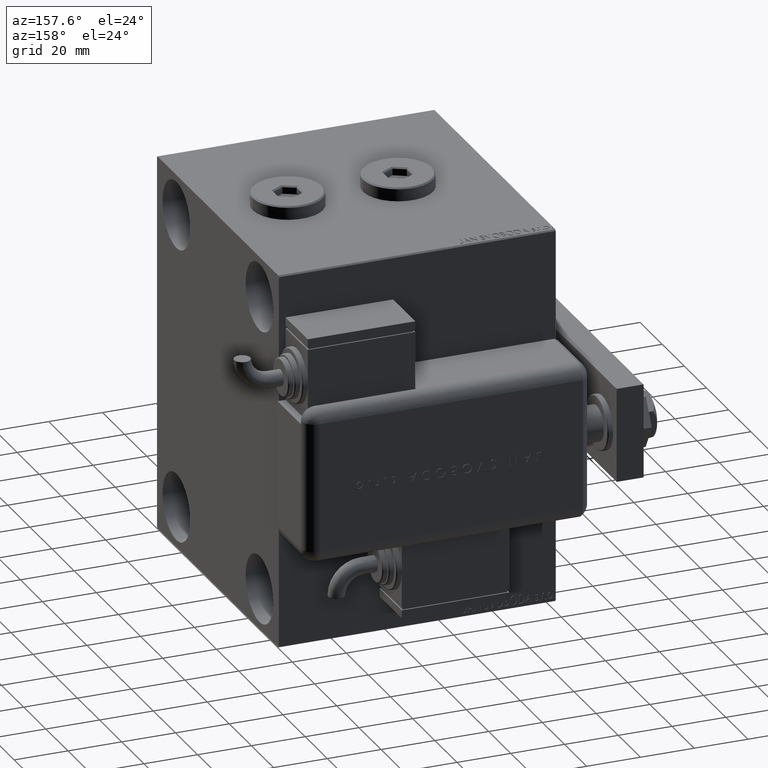
[diagram: clean part render]
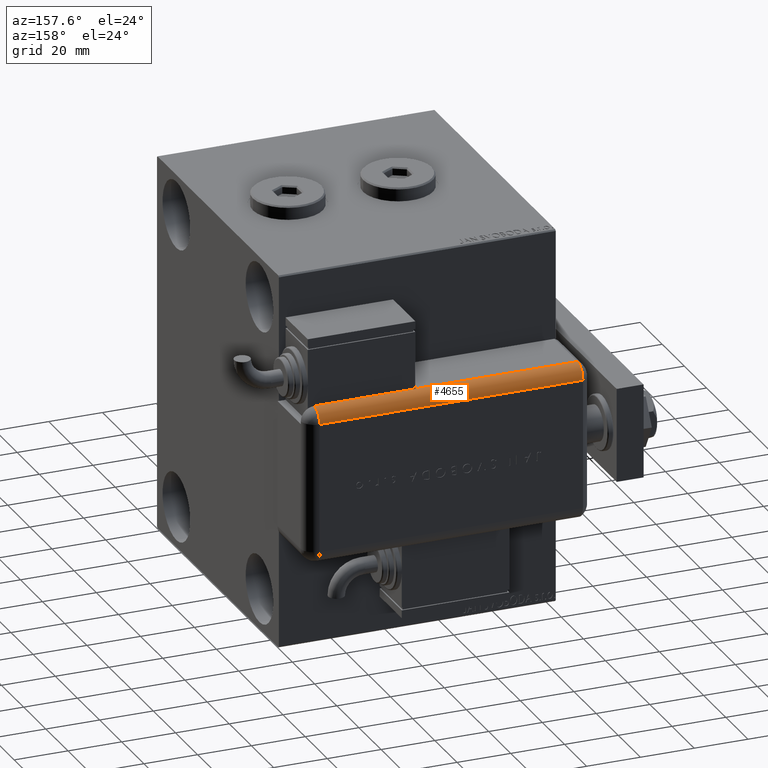
[diagram: same view with one face highlighted and labeled with its STEP entity id]
A machine part, auxiliary view. The second image highlights one B-rep face of the part: STEP entity #4655.
In plain terms, the highlighted cylindrical surface (edge-blend (fillet) strip) has radius 5 mm, axis along (1, -0, -0).
Its self-contained STEP definition (entity closure, byte-faithful):
#259 = VERTEX_POINT ( 'NONE', #35998 ) ;
#411 = AXIS2_PLACEMENT_3D ( 'NONE', #19357, #38151, #33513 ) ;
#479 = DIRECTION ( 'NONE',  ( 0.000000000000000000, 0.000000000000000000, -1.000000000000000000 ) ) ;
#640 = AXIS2_PLACEMENT_3D ( 'NONE', #7378, #16293, #44951 ) ;
#1720 = LINE ( 'NONE', #16474, #9765 ) ;
#3910 = VERTEX_POINT ( 'NONE', #30209 ) ;
#4655 = ADVANCED_FACE ( 'NONE', ( #10303 ), #57755, .T. ) ;
#5134 = DIRECTION ( 'NONE',  ( -0.000000000000000000, -0.000000000000000000, 1.000000000000000000 ) ) ;
#6055 = LINE ( 'NONE', #33754, #24716 ) ;
#6606 = ORIENTED_EDGE ( 'NONE', *, *, #56266, .F. ) ;
#6736 = VECTOR ( 'NONE', #54958, 1000.000000000000000 ) ;
#7378 = CARTESIAN_POINT ( 'NONE',  ( 23.99999999999999289, 20.79999999999998295, 103.0000000000000000 ) ) ;
#9703 = EDGE_CURVE ( 'NONE', #3910, #259, #27182, .T. ) ;
#9765 = VECTOR ( 'NONE', #20188, 1000.000000000000000 ) ;
#10303 = FACE_OUTER_BOUND ( 'NONE', #28862, .T. ) ;
#10653 = AXIS2_PLACEMENT_3D ( 'NONE', #42652, #479, #42965 ) ;
#11899 = ORIENTED_EDGE ( 'NONE', *, *, #34333, .F. ) ;
#11974 = ORIENTED_EDGE ( 'NONE', *, *, #30219, .F. ) ;
#16293 = DIRECTION ( 'NONE',  ( -0.000000000000000000, -0.000000000000000000, 1.000000000000000000 ) ) ;
#16474 = CARTESIAN_POINT ( 'NONE',  ( 28.99999999999999645, 20.79999999999998295, 103.0000000000000000 ) ) ;
#17360 = LINE ( 'NONE', #26617, #6736 ) ;
#19357 = CARTESIAN_POINT ( 'NONE',  ( 23.99999999999999289, 20.79999999999998295, 5.000000000000004441 ) ) ;
#20188 = DIRECTION ( 'NONE',  ( -0.000000000000000000, -0.000000000000000000, 1.000000000000000000 ) ) ;
#22155 = CARTESIAN_POINT ( 'NONE',  ( 28.99599839871871154, 20.99999999999999289, 43.00000000000000000 ) ) ;
#24716 = VECTOR ( 'NONE', #5134, 1000.000000000000000 ) ;
#26617 = CARTESIAN_POINT ( 'NONE',  ( 23.99999999999999289, 25.79999999999998295, 103.0000000000000000 ) ) ;
#26709 = CARTESIAN_POINT ( 'NONE',  ( 23.99999999999999289, 20.79999999999998295, 43.00000000000000000 ) ) ;
#26952 = CIRCLE ( 'NONE', #411, 5.000000000000000888 ) ;
#27182 = CIRCLE ( 'NONE', #640, 5.000000000000000888 ) ;
#27345 = CIRCLE ( 'NONE', #38220, 5.000000000000000888 ) ;
#27551 = EDGE_CURVE ( 'NONE', #38440, #53937, #27345, .T. ) ;
#27725 = ORIENTED_EDGE ( 'NONE', *, *, #43124, .T. ) ;
#27763 = CARTESIAN_POINT ( 'NONE',  ( 23.99999999999999289, 25.79999999999998295, 5.000000000000004441 ) ) ;
#28862 = EDGE_LOOP ( 'NONE', ( #55461, #11899, #27725, #6606, #59156, #11974 ) ) ;
#30209 = CARTESIAN_POINT ( 'NONE',  ( 28.99999999999999645, 20.79999999999998295, 103.0000000000000000 ) ) ;
#30219 = EDGE_CURVE ( 'NONE', #53937, #3910, #1720, .T. ) ;
#30795 = VERTEX_POINT ( 'NONE', #27763 ) ;
#33513 = DIRECTION ( 'NONE',  ( -1.000000000000000000, 0.000000000000000000, 0.000000000000000000 ) ) ;
#33754 = CARTESIAN_POINT ( 'NONE',  ( 28.99599839871871154, 20.99999999999998224, 103.0000000000000000 ) ) ;
#34333 = EDGE_CURVE ( 'NONE', #59917, #38440, #6055, .T. ) ;
#35998 = CARTESIAN_POINT ( 'NONE',  ( 23.99999999999999289, 25.79999999999998295, 103.0000000000000000 ) ) ;
#38151 = DIRECTION ( 'NONE',  ( -0.000000000000000000, -0.000000000000000000, 1.000000000000000000 ) ) ;
#38220 = AXIS2_PLACEMENT_3D ( 'NONE', #26709, #60269, #41478 ) ;
#38440 = VERTEX_POINT ( 'NONE', #22155 ) ;
#40783 = CARTESIAN_POINT ( 'NONE',  ( 28.99999999999999645, 20.79999999999998295, 43.00000000000000000 ) ) ;
#41478 = DIRECTION ( 'NONE',  ( 1.000000000000000000, -6.383782391594648845E-14, 0.000000000000000000 ) ) ;
#42652 = CARTESIAN_POINT ( 'NONE',  ( 23.99999999999999289, 20.79999999999998295, 103.0000000000000000 ) ) ;
#42965 = DIRECTION ( 'NONE',  ( -1.000000000000000000, 0.000000000000000000, 0.000000000000000000 ) ) ;
#43124 = EDGE_CURVE ( 'NONE', #59917, #30795, #26952, .T. ) ;
#44951 = DIRECTION ( 'NONE',  ( -1.000000000000000000, 0.000000000000000000, 0.000000000000000000 ) ) ;
#49872 = CARTESIAN_POINT ( 'NONE',  ( 28.99599839871871154, 21.00000000000000000, 5.000000000000004441 ) ) ;
#53937 = VERTEX_POINT ( 'NONE', #40783 ) ;
#54958 = DIRECTION ( 'NONE',  ( 0.000000000000000000, 0.000000000000000000, -1.000000000000000000 ) ) ;
#55461 = ORIENTED_EDGE ( 'NONE', *, *, #27551, .F. ) ;
#56266 = EDGE_CURVE ( 'NONE', #259, #30795, #17360, .T. ) ;
#57755 = CYLINDRICAL_SURFACE ( 'NONE', #10653, 5.000000000000000888 ) ;
#59156 = ORIENTED_EDGE ( 'NONE', *, *, #9703, .F. ) ;
#59917 = VERTEX_POINT ( 'NONE', #49872 ) ;
#60269 = DIRECTION ( 'NONE',  ( -0.000000000000000000, 0.000000000000000000, -1.000000000000000000 ) ) ;